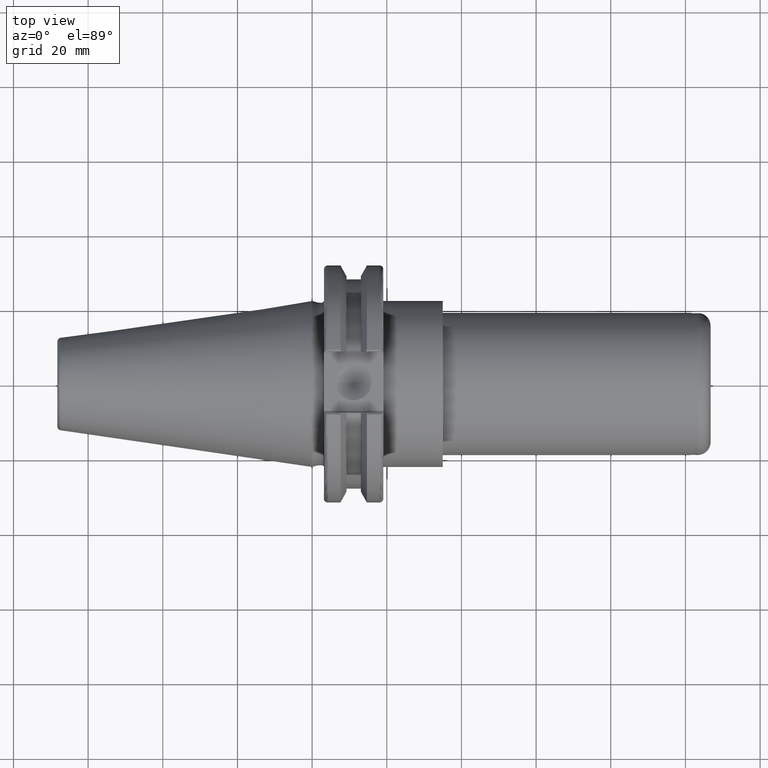
[diagram: clean part render]
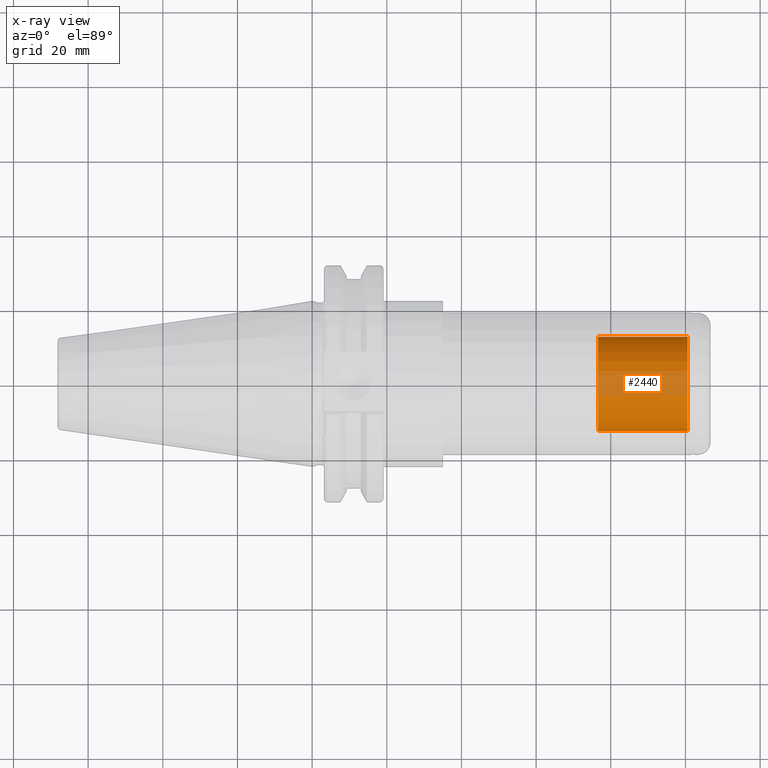
[diagram: x-ray — body ghosted, one internal face saturated and labeled with its STEP entity id]
A machine part, top view, then the same camera in x-ray: the body is ghosted and one INTERNAL B-rep face — a face not visible from any outside direction — is saturated and labeled: STEP entity #2440.
In plain terms, the highlighted cylindrical surface (partial cylindrical patch) has radius 12.7 mm, axis along (1, 0, 0).
Its self-contained STEP definition (entity closure, byte-faithful):
#518=CYLINDRICAL_SURFACE('',#2760,12.7);
#585=CIRCLE('',#2754,12.7);
#586=CIRCLE('',#2756,12.7);
#721=FACE_OUTER_BOUND('',#845,.T.);
#845=EDGE_LOOP('',(#1801,#1802,#1803,#1804));
#984=LINE('',#3768,#1133);
#986=LINE('',#3773,#1135);
#1133=VECTOR('',#3045,10.);
#1135=VECTOR('',#3049,10.);
#1280=VERTEX_POINT('',#3760);
#1282=VERTEX_POINT('',#3764);
#1283=VERTEX_POINT('',#3770);
#1284=VERTEX_POINT('',#3772);
#1481=EDGE_CURVE('',#1280,#1282,#984,.T.);
#1483=EDGE_CURVE('',#1284,#1283,#986,.T.);
#1487=EDGE_CURVE('',#1280,#1283,#585,.T.);
#1488=EDGE_CURVE('',#1284,#1282,#586,.T.);
#1801=ORIENTED_EDGE('',*,*,#1483,.T.);
#1802=ORIENTED_EDGE('',*,*,#1487,.F.);
#1803=ORIENTED_EDGE('',*,*,#1481,.T.);
#1804=ORIENTED_EDGE('',*,*,#1488,.F.);
#2440=ADVANCED_FACE('',(#721),#518,.F.);
#2754=AXIS2_PLACEMENT_3D('',#3782,#3055,#3056);
#2756=AXIS2_PLACEMENT_3D('',#3784,#3059,#3060);
#2760=AXIS2_PLACEMENT_3D('',#3789,#3067,#3068);
#3045=DIRECTION('',(1.,0.,0.));
#3049=DIRECTION('',(-1.,0.,0.));
#3055=DIRECTION('center_axis',(1.,0.,0.));
#3056=DIRECTION('ref_axis',(0.,0.,-1.));
#3059=DIRECTION('center_axis',(-1.,0.,0.));
#3060=DIRECTION('ref_axis',(0.,-1.,0.));
#3067=DIRECTION('center_axis',(1.,0.,0.));
#3068=DIRECTION('ref_axis',(0.,6.12323399573677E-17,-1.));
#3760=CARTESIAN_POINT('',(76.6,-3.175,12.2967221242085));
#3764=CARTESIAN_POINT('',(100.6,-3.175,12.2967221242085));
#3768=CARTESIAN_POINT('',(89.1,-3.175,12.2967221242085));
#3770=CARTESIAN_POINT('',(76.6,3.175,12.2967221242085));
#3772=CARTESIAN_POINT('',(100.6,3.175,12.2967221242085));
#3773=CARTESIAN_POINT('',(89.1,3.175,12.2967221242085));
#3782=CARTESIAN_POINT('Origin',(76.6,0.,0.));
#3784=CARTESIAN_POINT('Origin',(100.6,0.,0.));
#3789=CARTESIAN_POINT('Origin',(89.1,0.,0.));